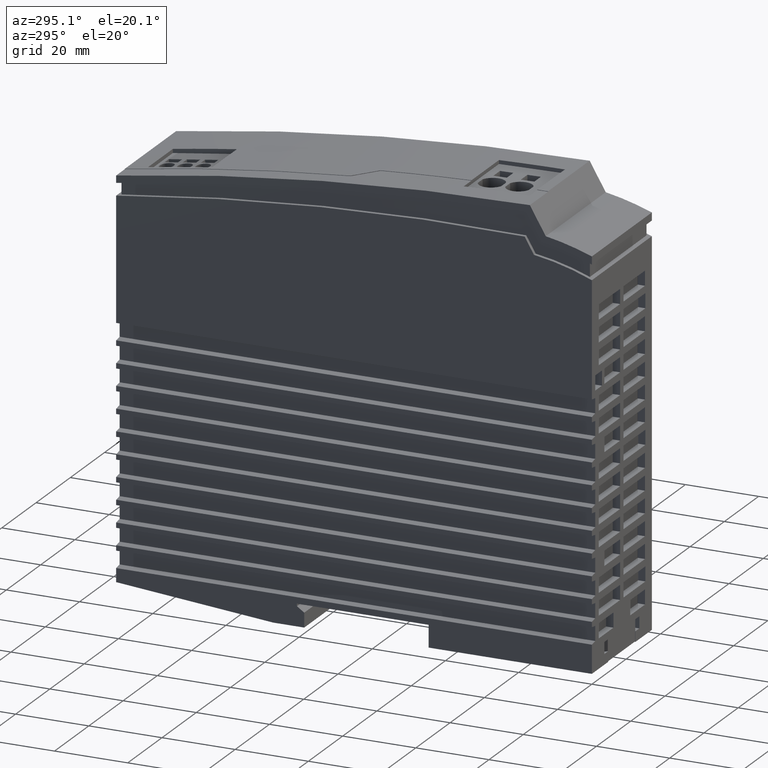
[diagram: clean part render]
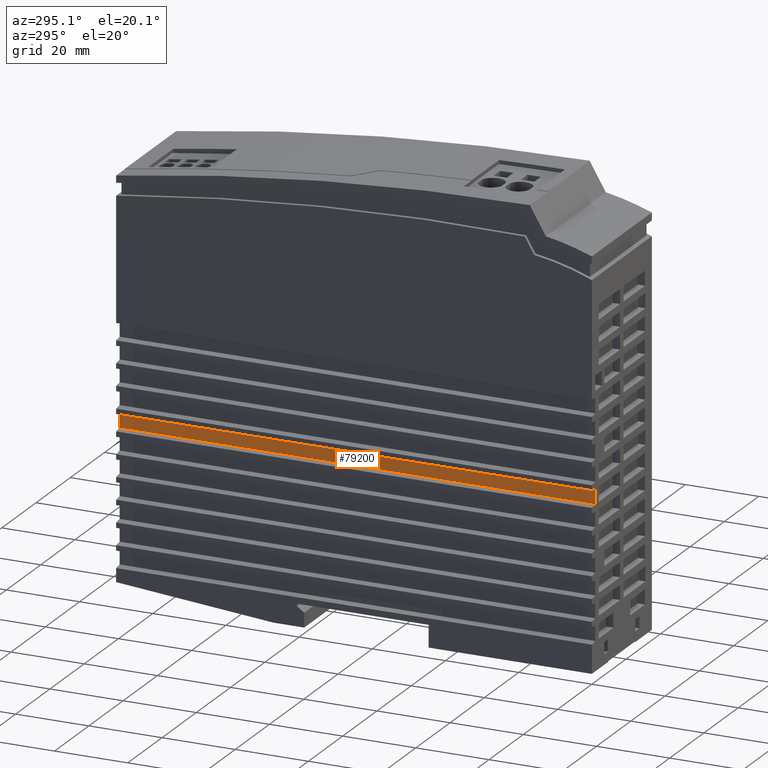
[diagram: same view with one face highlighted and labeled with its STEP entity id]
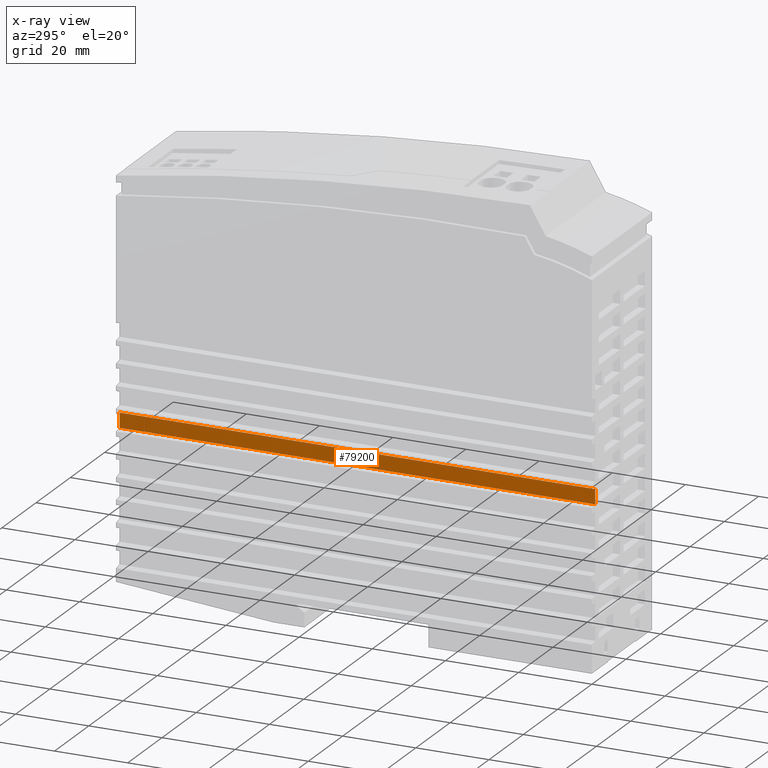
[diagram: x-ray of the same camera — body ghosted, the highlighted face saturated]
A machine part, auxiliary view. The second image highlights one B-rep face of the part: STEP entity #79200.
The next image is the same camera in x-ray: the body ghosted, the highlighted face saturated — about 0% of this face is hidden behind the body in this view.
In plain terms, the highlighted planar face has unit normal (-1, 0, 0).
Its self-contained STEP definition (entity closure, byte-faithful):
#34100=CARTESIAN_POINT('',(41.9999999999996,0.,-10.5));
#34110=VERTEX_POINT('',#34100);
#34140=CARTESIAN_POINT('',(41.9999999999996,0.,-10.5));
#34150=DIRECTION('',(0.,1.,0.));
#34160=VECTOR('',#34150,1.);
#34170=LINE('',#34140,#34160);
#34180=CARTESIAN_POINT('',(41.9999999999996,130.,-10.5));
#34190=VERTEX_POINT('',#34180);
#34200=EDGE_CURVE('',#34110,#34190,#34170,.T.);
#53130=CARTESIAN_POINT('',(0.,130.,-10.5));
#53140=DIRECTION('',(1.,0.,0.));
#53150=VECTOR('',#53140,1.);
#53160=LINE('',#53130,#53150);
#53170=CARTESIAN_POINT('',(38.0000000000004,130.,-10.5));
#53180=VERTEX_POINT('',#53170);
#53190=EDGE_CURVE('',#53180,#34190,#53160,.T.);
#70490=CARTESIAN_POINT('',(38.0000000000004,0.,-10.5));
#70500=DIRECTION('',(0.,-1.,0.));
#70510=VECTOR('',#70500,1.);
#70520=LINE('',#70490,#70510);
#70530=CARTESIAN_POINT('',(38.0000000000004,0.,-10.5));
#70540=VERTEX_POINT('',#70530);
#70550=EDGE_CURVE('',#53180,#70540,#70520,.T.);
#79040=CARTESIAN_POINT('',(37.8798400000004,133.27016,-10.5));
#79050=DIRECTION('',(0.,0.,1.));
#79060=DIRECTION('',(1.,0.,0.));
#79070=AXIS2_PLACEMENT_3D('',#79040,#79050,#79060);
#79080=PLANE('',#79070);
#79090=CARTESIAN_POINT('',(0.,0.,-10.5));
#79100=DIRECTION('',(1.,0.,0.));
#79110=VECTOR('',#79100,1.);
#79120=LINE('',#79090,#79110);
#79130=EDGE_CURVE('',#70540,#34110,#79120,.T.);
#79140=ORIENTED_EDGE('',*,*,#79130,.T.);
#79150=ORIENTED_EDGE('',*,*,#70550,.T.);
#79160=ORIENTED_EDGE('',*,*,#53190,.F.);
#79170=ORIENTED_EDGE('',*,*,#34200,.T.);
#79180=EDGE_LOOP('',(#79170,#79160,#79150,#79140));
#79190=FACE_OUTER_BOUND('',#79180,.T.);
#79200=ADVANCED_FACE('',(#79190),#79080,.T.);